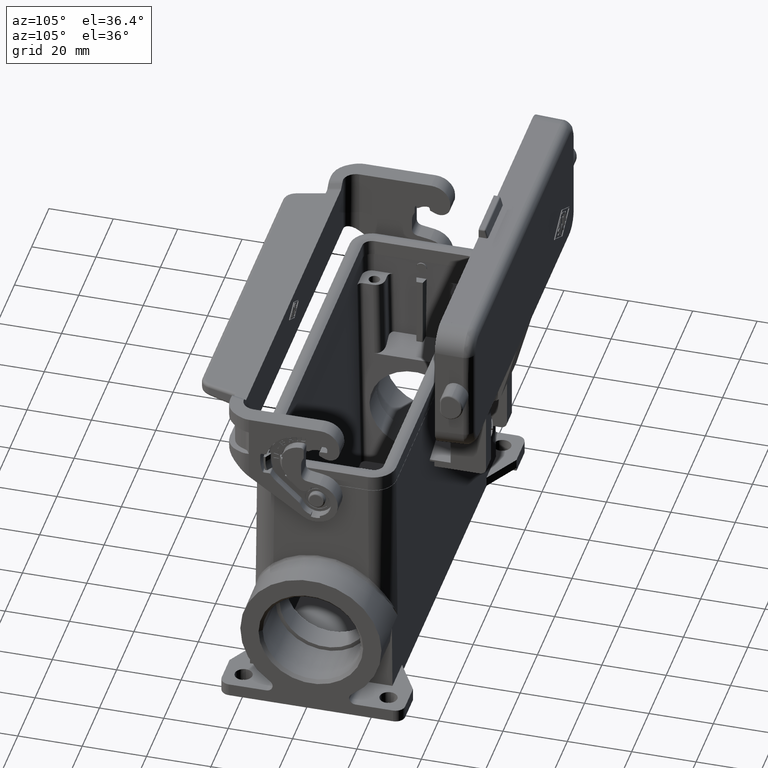
[diagram: clean part render]
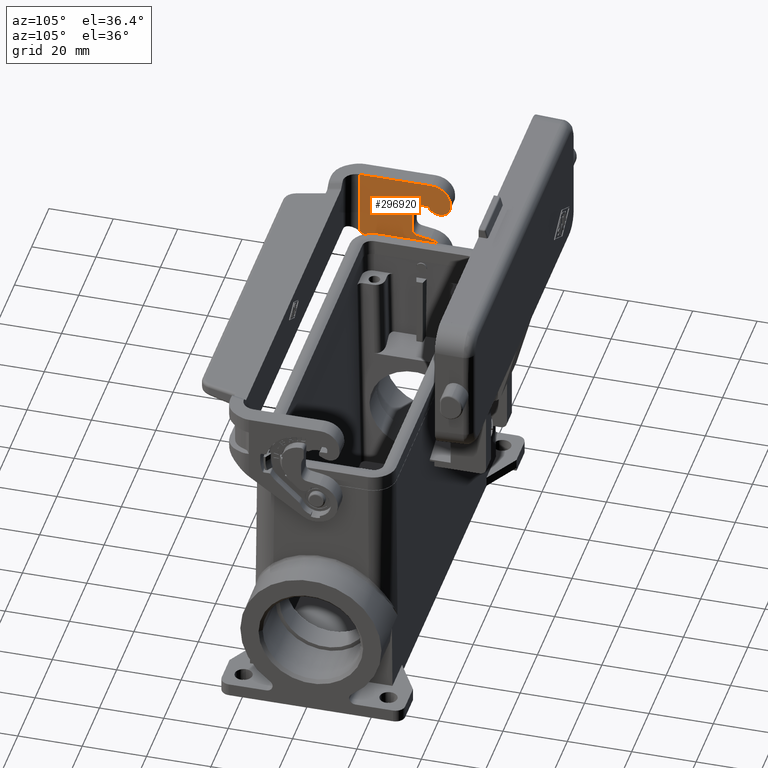
[diagram: same view with one face highlighted and labeled with its STEP entity id]
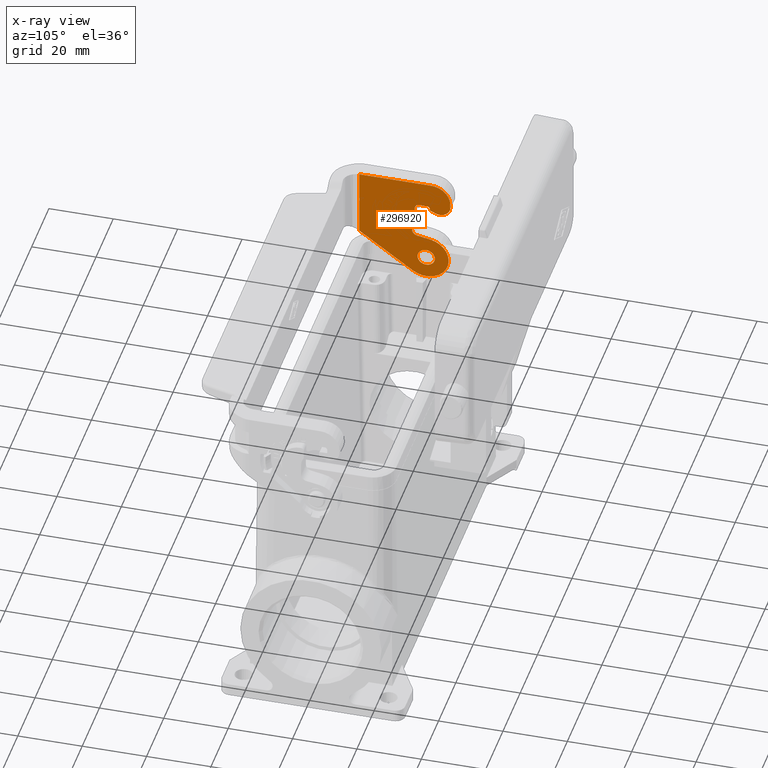
[diagram: x-ray of the same camera — body ghosted, the highlighted face saturated]
A machine part, auxiliary view. The second image highlights one B-rep face of the part: STEP entity #296920.
The next image is the same camera in x-ray: the body ghosted, the highlighted face saturated — about 0% of this face is hidden behind the body in this view.
In plain terms, the highlighted planar face has unit normal (-1, -0, 0).
Its self-contained STEP definition (entity closure, byte-faithful):
#294850=CARTESIAN_POINT('',(121.818578,37.4630623705046,71.9999999999997
));
#294860=VERTEX_POINT('',#294850);
#294940=CARTESIAN_POINT('',(121.818578,42.8630623705046,71.9999999999997
));
#294950=VERTEX_POINT('',#294940);
#294980=CARTESIAN_POINT('',(121.818578,40.1630623705046,71.9999999999997
));
#294990=DIRECTION('',(-1.,-1.86243165512241E-16,-1.90949043772846E-15));
#295000=DIRECTION('',(1.86243165512245E-16,-1.,-2.31081361403301E-15));
#295010=AXIS2_PLACEMENT_3D('',#294980,#294990,#295000);
#295020=CIRCLE('',#295010,2.7);
#295030=EDGE_CURVE('',#294860,#294950,#295020,.T.);
#295150=CARTESIAN_POINT('',(121.818578,43.2656169257217,76.6803483699101
));
#295160=DIRECTION('',(1.,1.86243165512241E-16,1.90949043772846E-15));
#295170=DIRECTION('',(-1.86243165512244E-16,1.,1.46227916848509E-15));
#295180=AXIS2_PLACEMENT_3D('',#295150,#295160,#295170);
#295190=PLANE('',#295180);
#295200=EDGE_CURVE('',#294950,#294860,#295020,.T.);
#295210=ORIENTED_EDGE('',*,*,#295200,.F.);
#295220=ORIENTED_EDGE('',*,*,#295030,.F.);
#295230=EDGE_LOOP('',(#295220,#295210));
#295240=FACE_BOUND('',#295230,.T.);
#295250=CARTESIAN_POINT('',(121.818578,-294.199861611935,
99.0000000000478));
#295260=DIRECTION('',(1.86243165512245E-16,-1.,-2.31081361403301E-15));
#295270=VECTOR('',#295260,1.);
#295280=LINE('',#295250,#295270);
#295290=CARTESIAN_POINT('',(121.818578,60.91306237059,99.0000000000486))
;
#295300=VERTEX_POINT('',#295290);
#295310=CARTESIAN_POINT('',(121.818578,38.6630623705047,98.9999999999992
));
#295320=VERTEX_POINT('',#295310);
#295330=EDGE_CURVE('',#295300,#295320,#295280,.T.);
#295340=ORIENTED_EDGE('',*,*,#295330,.F.);
#295350=CARTESIAN_POINT('',(121.818578,38.6630623705041,92.9999999999992
));
#295360=DIRECTION('',(-1.,-2.77555756156286E-16,1.12127750640508E-17));
#295370=DIRECTION('',(2.77555756156286E-16,-1.,-2.69509892359135E-16));
#295380=AXIS2_PLACEMENT_3D('',#295350,#295360,#295370);
#295390=CIRCLE('',#295380,6.);
#295400=CARTESIAN_POINT('',(121.818578,32.663062370504,92.9999999999999)
);
#295410=VERTEX_POINT('',#295400);
#295420=EDGE_CURVE('',#295410,#295320,#295390,.T.);
#295430=ORIENTED_EDGE('',*,*,#295420,.T.);
#295440=CARTESIAN_POINT('',(121.818578,32.6630623705174,206.232226182514
));
#295450=DIRECTION('',(-1.90949043772848E-15,1.12510450430466E-13,1.));
#295460=VECTOR('',#295450,1.);
#295470=LINE('',#295440,#295460);
#295480=CARTESIAN_POINT('',(121.818578,32.663062370504,91.8999999999995)
);
#295490=VERTEX_POINT('',#295480);
#295500=EDGE_CURVE('',#295490,#295410,#295470,.T.);
#295510=ORIENTED_EDGE('',*,*,#295500,.T.);
#295520=CARTESIAN_POINT('',(121.818578,35.963062370504,91.8999999999991)
);
#295530=DIRECTION('',(-1.,-2.77555756156286E-16,1.12127750640508E-17));
#295540=DIRECTION('',(6.58218419798611E-17,-0.275977553757036,
-0.96116408059305));
#295550=AXIS2_PLACEMENT_3D('',#295520,#295530,#295540);
#295560=CIRCLE('',#295550,3.3);
#295570=CARTESIAN_POINT('',(121.818578,37.4676023846094,88.9629335475748
));
#295580=VERTEX_POINT('',#295570);
#295590=EDGE_CURVE('',#295580,#295490,#295560,.T.);
#295600=ORIENTED_EDGE('',*,*,#295590,.T.);
#295610=CARTESIAN_POINT('',(121.818578,-294.199861611935,
-80.9368555932645));
#295620=DIRECTION('',(-1.05719836143598E-15,0.890020137098303,
0.455921216395462));
#295630=VECTOR('',#295620,1.);
#295640=LINE('',#295610,#295630);
#295650=CARTESIAN_POINT('',(121.818578,38.1570090183632,89.3160886032311
));
#295660=VERTEX_POINT('',#295650);
#295670=EDGE_CURVE('',#295580,#295660,#295640,.T.);
#295680=ORIENTED_EDGE('',*,*,#295670,.F.);
#295690=CARTESIAN_POINT('',(121.818578,40.1630623705032,85.3999999999986
));
#295700=DIRECTION('',(-1.,-2.77555756156286E-16,1.12127750640508E-17));
#295710=DIRECTION('',(2.77555756156287E-16,-1.,1.1367716372086E-13));
#295720=AXIS2_PLACEMENT_3D('',#295690,#295700,#295710);
#295730=CIRCLE('',#295720,4.4);
#295740=CARTESIAN_POINT('',(121.818578,38.6814300195971,89.5430382060436
));
#295750=VERTEX_POINT('',#295740);
#295760=EDGE_CURVE('',#295660,#295750,#295730,.T.);
#295770=ORIENTED_EDGE('',*,*,#295760,.F.);
#295780=CARTESIAN_POINT('',(121.818578,38.5130627069942,90.0138380021851
));
#295790=DIRECTION('',(-1.,-2.77555756156286E-16,1.12127750640508E-17));
#295800=DIRECTION('',(-1.12127750640512E-17,1.46227916848509E-15,-1.));
#295810=AXIS2_PLACEMENT_3D('',#295780,#295790,#295800);
#295820=CIRCLE('',#295810,0.5);
#295830=CARTESIAN_POINT('',(121.818578,39.0130627069942,90.0138380021851
));
#295840=VERTEX_POINT('',#295830);
#295850=EDGE_CURVE('',#295840,#295750,#295820,.T.);
#295860=ORIENTED_EDGE('',*,*,#295850,.T.);
#295870=CARTESIAN_POINT('',(121.818578,39.0130627069938,206.232226182514
));
#295880=DIRECTION('',(-1.90949043772846E-15,-2.84129161012329E-15,1.));
#295890=VECTOR('',#295880,1.);
#295900=LINE('',#295870,#295890);
#295910=CARTESIAN_POINT('',(121.818578,39.0130627069942,90.0990383726187
));
#295920=VERTEX_POINT('',#295910);
#295930=EDGE_CURVE('',#295840,#295920,#295900,.T.);
#295940=ORIENTED_EDGE('',*,*,#295930,.F.);
#295950=CARTESIAN_POINT('',(121.818578,40.0130627069942,90.0990383726187
));
#295960=DIRECTION('',(-1.,1.86243165512253E-16,8.48534445547924E-16));
#295970=DIRECTION('',(-1.86243165512254E-16,-1.,-1.46227916848509E-15));
#295980=AXIS2_PLACEMENT_3D('',#295950,#295960,#295970);
#295990=CIRCLE('',#295980,1.);
#296000=CARTESIAN_POINT('',(121.818578,40.0130627069942,91.0990383726187
));
#296010=VERTEX_POINT('',#296000);
#296020=EDGE_CURVE('',#295920,#296010,#295990,.T.);
#296030=ORIENTED_EDGE('',*,*,#296020,.F.);
#296040=CARTESIAN_POINT('',(121.818578,-294.199861611935,
91.0990383726182));
#296050=DIRECTION('',(-1.86243165512244E-16,1.,1.46227916848509E-15));
#296060=VECTOR('',#296050,1.);
#296070=LINE('',#296040,#296060);
#296080=CARTESIAN_POINT('',(121.818578,42.2630623705031,91.0990383726187
));
#296090=VERTEX_POINT('',#296080);
#296100=EDGE_CURVE('',#296010,#296090,#296070,.T.);
#296110=ORIENTED_EDGE('',*,*,#296100,.F.);
#296120=CARTESIAN_POINT('',(121.818578,42.2630623705031,89.5990383726187
));
#296130=DIRECTION('',(1.,-1.86243165512253E-16,-8.48534445547924E-16));
#296140=DIRECTION('',(1.86243165512254E-16,1.,1.46227916848509E-15));
#296150=AXIS2_PLACEMENT_3D('',#296120,#296130,#296140);
#296160=CIRCLE('',#296150,1.5);
#296170=CARTESIAN_POINT('',(121.818578,43.7630623705031,89.5990383726187
));
#296180=VERTEX_POINT('',#296170);
#296190=EDGE_CURVE('',#296180,#296090,#296160,.T.);
#296200=ORIENTED_EDGE('',*,*,#296190,.T.);
#296210=CARTESIAN_POINT('',(121.818578,43.7630623705027,206.232226182514
));
#296220=DIRECTION('',(1.90949043772846E-15,2.84129161012329E-15,-1.));
#296230=VECTOR('',#296220,1.);
#296240=LINE('',#296210,#296230);
#296250=CARTESIAN_POINT('',(121.818578,43.7630623705031,88.2284271247449
));
#296260=VERTEX_POINT('',#296250);
#296270=EDGE_CURVE('',#296180,#296260,#296240,.T.);
#296280=ORIENTED_EDGE('',*,*,#296270,.F.);
#296290=CARTESIAN_POINT('',(121.818578,44.7630623705031,88.2284271247449
));
#296300=DIRECTION('',(1.,2.77555756156286E-16,-1.12127750640504E-17));
#296310=DIRECTION('',(1.12127750640508E-17,-1.46227916848509E-15,1.));
#296320=AXIS2_PLACEMENT_3D('',#296290,#296300,#296310);
#296330=CIRCLE('',#296320,1.);
#296340=CARTESIAN_POINT('',(121.818578,43.9112105186512,87.704644323866)
);
#296350=VERTEX_POINT('',#296340);
#296360=EDGE_CURVE('',#296260,#296350,#296330,.T.);
#296370=ORIENTED_EDGE('',*,*,#296360,.F.);
#296380=CARTESIAN_POINT('',(121.818578,44.5630623705031,85.3999999999986
));
#296390=VERTEX_POINT('',#296380);
#296400=EDGE_CURVE('',#296350,#296390,#295730,.T.);
#296410=ORIENTED_EDGE('',*,*,#296400,.F.);
#296420=CARTESIAN_POINT('',(121.818578,44.5630623705176,206.232226182514
));
#296430=DIRECTION('',(-1.1212775064016E-17,-1.12510450430466E-13,-1.));
#296440=VECTOR('',#296430,1.);
#296450=LINE('',#296420,#296440);
#296460=CARTESIAN_POINT('',(121.818578,44.5630623705035,81.562024260671)
);
#296470=VERTEX_POINT('',#296460);
#296480=EDGE_CURVE('',#296390,#296470,#296450,.T.);
#296490=ORIENTED_EDGE('',*,*,#296480,.F.);
#296500=CARTESIAN_POINT('',(121.818578,42.5630623705035,81.5620242606712
));
#296510=DIRECTION('',(1.,-1.8624316551196E-16,1.75871646199379E-15));
#296520=DIRECTION('',(-1.75871646199379E-15,-1.46227916848509E-15,1.));
#296530=AXIS2_PLACEMENT_3D('',#296500,#296510,#296520);
#296540=CIRCLE('',#296530,2.);
#296550=CARTESIAN_POINT('',(121.818578,42.9103587258374,79.5924087546468
));
#296560=VERTEX_POINT('',#296550);
#296570=EDGE_CURVE('',#296560,#296470,#296540,.T.);
#296580=ORIENTED_EDGE('',*,*,#296570,.T.);
#296590=CARTESIAN_POINT('',(121.818578,-294.199861611935,
20.1507814365623));
#296600=DIRECTION('',(5.15784882777756E-16,-0.984807753012228,
-0.173648177666816));
#296610=VECTOR('',#296600,1.);
#296620=LINE('',#296590,#296610);
#296630=CARTESIAN_POINT('',(121.818578,38.9475251268369,78.8936542710853
));
#296640=VERTEX_POINT('',#296630);
#296650=EDGE_CURVE('',#296560,#296640,#296620,.T.);
#296660=ORIENTED_EDGE('',*,*,#296650,.F.);
#296670=CARTESIAN_POINT('',(121.818578,40.1630623705046,71.9999999999997
));
#296680=DIRECTION('',(1.,-1.86243165512253E-16,-8.48534445547924E-16));
#296690=DIRECTION('',(1.86243165512254E-16,1.,1.46227916848509E-15));
#296700=AXIS2_PLACEMENT_3D('',#296670,#296680,#296690);
#296710=CIRCLE('',#296700,7.);
#296720=CARTESIAN_POINT('',(121.818578,44.1780974249614,66.2659356899764
));
#296730=VERTEX_POINT('',#296720);
#296740=EDGE_CURVE('',#296640,#296730,#296710,.T.);
#296750=ORIENTED_EDGE('',*,*,#296740,.F.);
#296760=CARTESIAN_POINT('',(121.818578000001,-294.199861611934,
-170.668861991618));
#296770=DIRECTION('',(1.2203627330845E-15,-0.819152044289056,
-0.573576436350954));
#296780=VECTOR('',#296770,1.);
#296790=LINE('',#296760,#296780);
#296800=CARTESIAN_POINT('',(121.818578,60.9130623705899,77.9838842965774
));
#296810=VERTEX_POINT('',#296800);
#296820=EDGE_CURVE('',#296810,#296730,#296790,.T.);
#296830=ORIENTED_EDGE('',*,*,#296820,.T.);
#296840=CARTESIAN_POINT('',(121.818578,60.9130623705897,206.232226182514
));
#296850=DIRECTION('',(1.90949043772846E-15,2.31081361403301E-15,-1.));
#296860=VECTOR('',#296850,1.);
#296870=LINE('',#296840,#296860);
#296880=EDGE_CURVE('',#295300,#296810,#296870,.T.);
#296890=ORIENTED_EDGE('',*,*,#296880,.T.);
#296900=EDGE_LOOP('',(#296890,#296830,#296750,#296660,#296580,#296490,
#296410,#296370,#296280,#296200,#296110,#296030,#295940,#295860,#295770,
#295680,#295600,#295510,#295430,#295340));
#296910=FACE_OUTER_BOUND('',#296900,.T.);
#296920=ADVANCED_FACE('',(#295240,#296910),#295190,.F.);